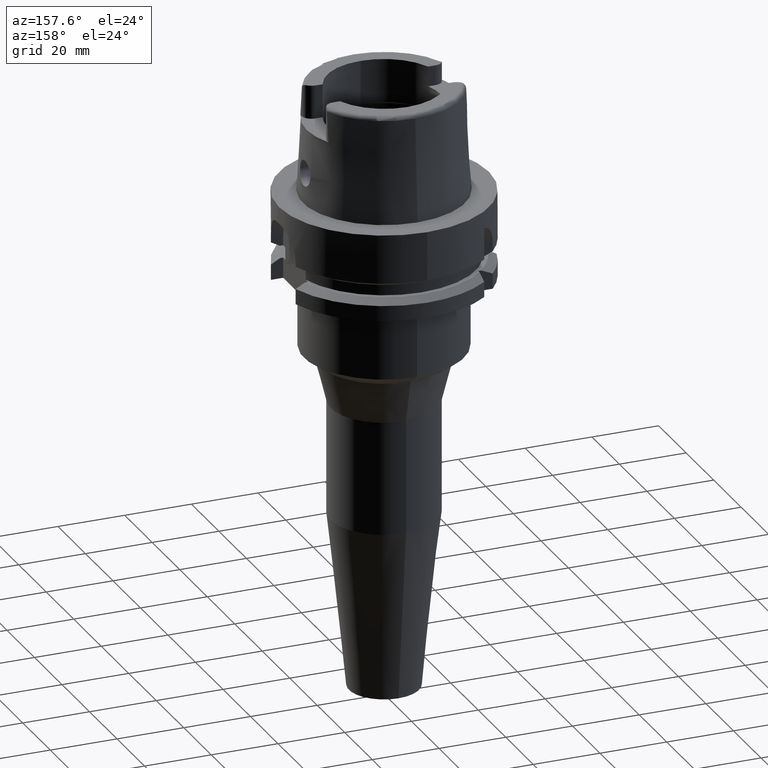
[diagram: clean part render]
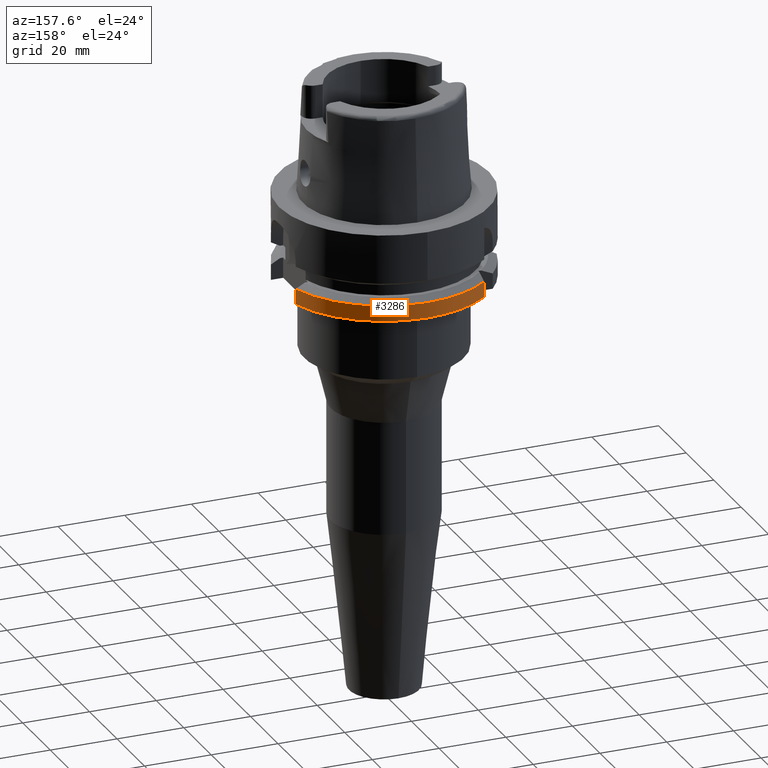
[diagram: same view with one face highlighted and labeled with its STEP entity id]
A machine part, auxiliary view. The second image highlights one B-rep face of the part: STEP entity #3286.
In plain terms, the highlighted cylindrical surface (partial cylindrical patch) has radius 31.5 mm, axis along (0, 0, 1).
Its self-contained STEP definition (entity closure, byte-faithful):
#1018=CARTESIAN_POINT('',(0.E0,0.E0,-2.6E1));
#1019=DIRECTION('',(0.E0,0.E0,1.E0));
#1020=DIRECTION('',(9.583148474999E-1,2.857142857143E-1,0.E0));
#1021=AXIS2_PLACEMENT_3D('',#1018,#1019,#1020);
#1026=CARTESIAN_POINT('',(0.E0,0.E0,-2.6E1));
#1027=DIRECTION('',(0.E0,0.E0,1.E0));
#1028=DIRECTION('',(0.E0,1.E0,0.E0));
#1029=AXIS2_PLACEMENT_3D('',#1026,#1027,#1028);
#1057=DIRECTION('',(1.956587004959E-6,1.607966851556E-6,-9.999999999968E-1));
#1058=VECTOR('',#1057,4.622468514639E0);
#1059=CARTESIAN_POINT('',(-2.000000904426E1,2.433617961450E1,
-2.137753148538E1));
#1060=LINE('',#1059,#1058);
#1064=DIRECTION('',(-4.466501118555E-8,1.498112946370E-7,1.E0));
#1065=VECTOR('',#1064,4.622495339674E0);
#1066=CARTESIAN_POINT('',(3.018691769625E1,9.E0,-2.6E1));
#1067=LINE('',#1066,#1065);
#1523=CARTESIAN_POINT('',(0.E0,0.E0,-2.137749907476E1));
#1524=DIRECTION('',(0.E0,0.E0,-1.E0));
#1525=DIRECTION('',(-6.349206349206E-1,7.725773665802E-1,0.E0));
#1526=AXIS2_PLACEMENT_3D('',#1523,#1524,#1525);
#1531=CARTESIAN_POINT('',(0.E0,0.E0,-2.137749907476E1));
#1532=DIRECTION('',(0.E0,0.E0,-1.E0));
#1533=DIRECTION('',(0.E0,1.E0,0.E0));
#1534=AXIS2_PLACEMENT_3D('',#1531,#1532,#1533);
#2465=CARTESIAN_POINT('',(-2.E1,2.433618704728E1,-2.6E1));
#2467=VERTEX_POINT('',#2465);
#2486=CARTESIAN_POINT('',(3.018691769625E1,9.E0,-2.6E1));
#2487=VERTEX_POINT('',#2486);
#2488=CARTESIAN_POINT('',(1.065814103640E-14,3.15E1,-2.6E1));
#2489=VERTEX_POINT('',#2488);
#2490=CARTESIAN_POINT('',(-2.000000904426E1,2.433617961450E1,
-2.137753148538E1));
#2491=VERTEX_POINT('',#2490);
#2510=CARTESIAN_POINT('',(3.018691748978E1,9.000000692502E0,-2.137750466033E1));
#2511=VERTEX_POINT('',#2510);
#2512=CARTESIAN_POINT('',(0.E0,3.15E1,-2.137749907476E1));
#2513=VERTEX_POINT('',#2512);
#3270=CARTESIAN_POINT('',(0.E0,0.E0,-1.591E2));
#3271=DIRECTION('',(0.E0,0.E0,1.E0));
#3272=DIRECTION('',(0.E0,1.E0,0.E0));
#3273=AXIS2_PLACEMENT_3D('',#3270,#3271,#3272);
#3274=CYLINDRICAL_SURFACE('',#3273,3.15E1);
#3275=ORIENTED_EDGE('',*,*,#3259,.T.);
#3276=ORIENTED_EDGE('',*,*,#3242,.F.);
#3277=ORIENTED_EDGE('',*,*,#3240,.F.);
#3279=ORIENTED_EDGE('',*,*,#3278,.T.);
#3281=ORIENTED_EDGE('',*,*,#3280,.F.);
#3283=ORIENTED_EDGE('',*,*,#3282,.F.);
#3284=EDGE_LOOP('',(#3275,#3276,#3277,#3279,#3281,#3283));
#3285=FACE_OUTER_BOUND('',#3284,.F.);
#1022=CIRCLE('',#1021,3.15E1);
#1030=CIRCLE('',#1029,3.15E1);
#1527=CIRCLE('',#1526,3.15E1);
#1535=CIRCLE('',#1534,3.15E1);
#3240=EDGE_CURVE('',#2487,#2489,#1022,.T.);
#3242=EDGE_CURVE('',#2489,#2467,#1030,.T.);
#3259=EDGE_CURVE('',#2491,#2467,#1060,.T.);
#3278=EDGE_CURVE('',#2487,#2511,#1067,.T.);
#3280=EDGE_CURVE('',#2513,#2511,#1535,.T.);
#3282=EDGE_CURVE('',#2491,#2513,#1527,.T.);
#3286=ADVANCED_FACE('',(#3285),#3274,.T.);